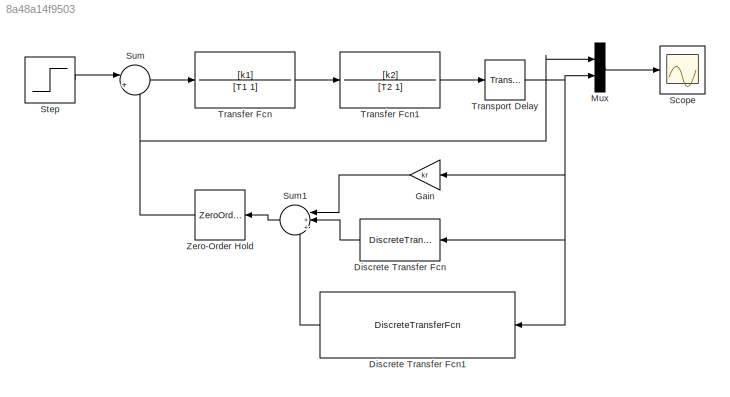
MODEL slx_8a48a14f9503
KIND model
CONFIG AbsTol = auto
CONFIG EnableMultiTasking = off
CONFIG FixedStep = auto
CONFIG MaxStep = auto
CONFIG MinStep = auto
CONFIG RelTol = 1e-3
CONFIG SampleTimeConstraint = Unconstrained
CONFIG SolverName = VariableStepAuto
CONFIG StartTime = 0.0
CONFIG StopTime = 300
BLOCK [DiscreteTransferFcn] Discrete Transfer Fcn
  Denominator = [1 -1]
  InputPortMap = u0
  NameLocation = top
  Numerator = [kr*Tp/Ti]
BLOCK [DiscreteTransferFcn] Discrete Transfer Fcn1
  Denominator = [1 0]
  InputPortMap = u0
  NameLocation = top
  Numerator = [kr*Td/Tp -kr*Td/Tp]
BLOCK [Gain] Gain
  Gain = kr
  NameLocation = top
BLOCK [Mux] Mux
  DisplayOption = bar
  Inputs = 2
BLOCK [Scope] Scope
  Floating = off
  NumInputPorts = 1
  ScopeSpecificationString = Simulink.scopes.TimeScopeBlockCfg('CurrentConfiguration', extmgr.ConfigurationSet(extmgr.Configuration('Core','General UI',true),extmgr.Configuration('Core','Source UI',true),extmgr.Configuration('Sources','WiredSimulink',true,'DataLoggingVariableName','y','DataLogging',true,'DataLoggingSaveFormat','StructureWithTime'),extmgr.Configuration('Visuals','Time Domain',true,'SerializedDisplays',{struct(...<+1444ch>
BLOCK [Step] Step
  SampleTime = Tp
BLOCK [Sum] Sum
  Inputs = |+-
BLOCK [Sum] Sum1
  Inputs = |+++
  NameLocation = top
BLOCK [TransferFcn] Transfer Fcn
  Denominator = [T1 1]
  Numerator = [k1]
BLOCK [TransferFcn] Transfer Fcn1
  Denominator = [T2 1]
  Numerator = [k2]
BLOCK [TransportDelay] Transport Delay
  DelayTime = -tau
BLOCK [ZeroOrderHold] Zero-Order Hold
  NameLocation = top
  SampleTime = Tp
LINE Discrete Transfer Fcn1:1 -> Sum1:3
LINE Discrete Transfer Fcn:1 -> Sum1:2
LINE Gain:1 -> Sum1:1
LINE Mux:1 -> Scope:1
LINE Step:1 -> Sum:1
LINE Sum1:1 -> Zero-Order Hold:1
LINE Sum:1 -> Transfer Fcn:1
LINE Transfer Fcn1:1 -> Transport Delay:1
LINE Transfer Fcn:1 -> Transfer Fcn1:1
NET Transport Delay:1 -> Discrete Transfer Fcn1:1, Discrete Transfer Fcn:1, Gain:1, Mux:2
NET Zero-Order Hold:1 -> Mux:1, Sum:2
note: NET lines group one-source signal fan-out (src -> all destinations, sorted); 1:1 wires keep LINE
